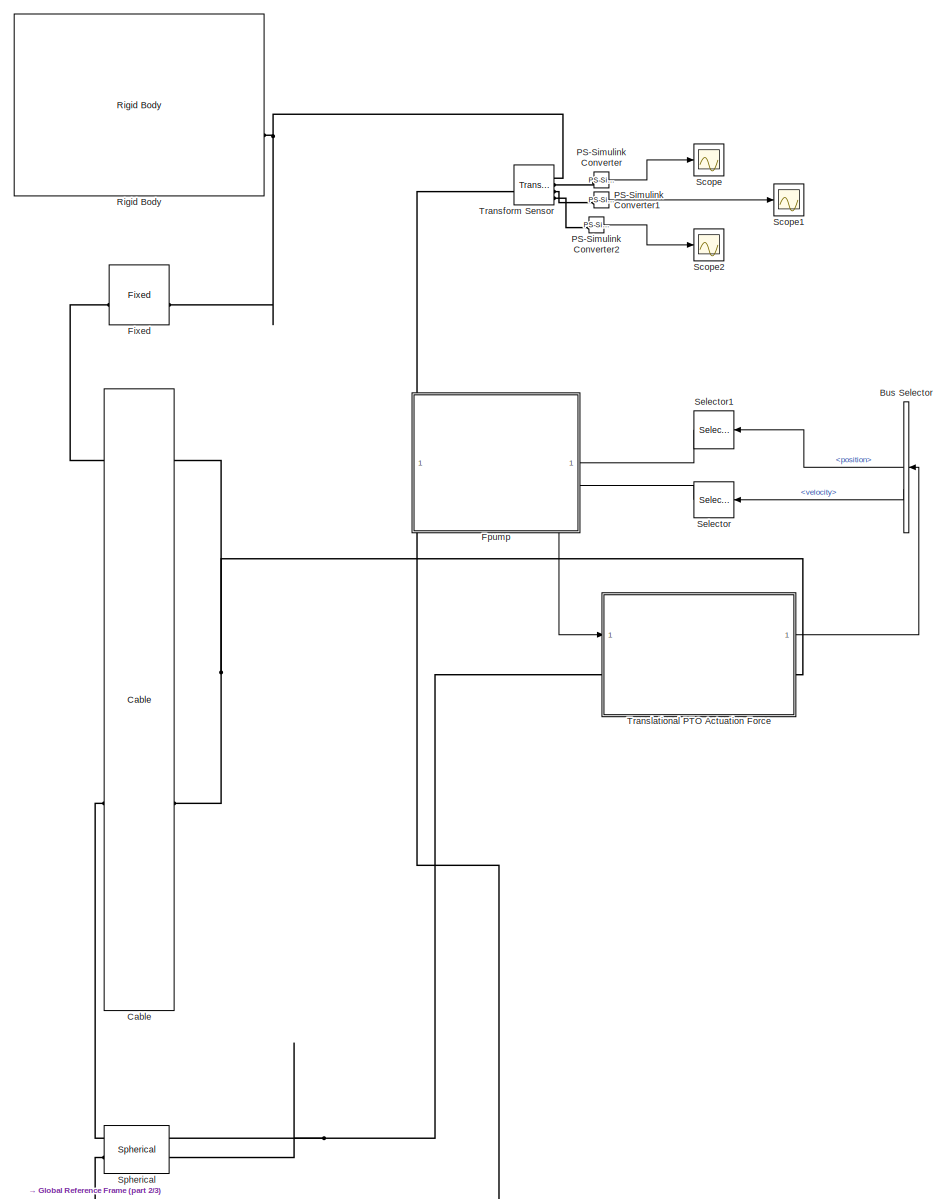
[diagram: root canvas - part 1/3, top center region]
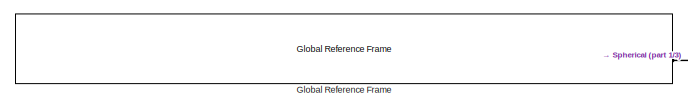
[diagram: root canvas - part 2/3, middle left region]
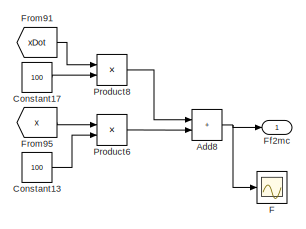
[diagram: root canvas - part 3/3, bottom right region]
MODEL slx_5f4019ffcd06
KIND model
CONFIG FixedStep = 0.01
CONFIG MaxStep = 0.01
CONFIG SolverName = ode23t
CONFIG StartTime = 0
CONFIG StopTime = 200
BLOCK [Sum] Add8
  IconShape = rectangular
BLOCK [BusSelector] Bus Selector
  NameLocation = top
  OutputSignals = position,velocity
BLOCK [Reference] Cable  REF=WECSim_Lib_Cables/Cable
  AttributesFormatString = %<cable>
  SourceBlock = WECSim_Lib_Cables/Cable
  SourceType = Cables
BLOCK [Constant] Constant13
  Value = 100
BLOCK [Constant] Constant17
  Value = 100
BLOCK [Scope] F
  ActiveDisplayYMaximum = 1
  ActiveDisplayYMinimum = -1
  DataLoggingVariableName = ScopeData2
  Floating = off
  GraphicalSettings = {"Style":{"BackgroundColor":[0.12941176470588237,0.12941176470588237,0.12941176470588237],"AxesColor":[0.07058823529411765,0.07058823529411765,0.07058823529411765],"LabelsColor":[0.8509803921568627,0.8509803921568627,0.8509803921568627],"PreserveColors":false,"Visible":[true],"LineStyle":["-"],"LineWidth":[1.5],"BarWidth":[0.9],"LineColor":["auto"],"LineFaceAlpha":[1],"LineEdgeAlpha":[1],"Marker":...<+1898ch>
  MultipleDisplayCache = [{"MaxYLimMag":1,"MaxYLimReal":1,"MinYLimMag":0,"MinYLimReal":-1,"PlotAsMagnitudePhase":false,"ShowGrid":true,"ShowLegend":false,"Title":"%<SignalLabel>","YLabel":""}]
  NumInputPorts = 1
  ScopeFrameLocation = window
  WasSavedAsWebScope = on
  WindowPosition = [917.000000,101.000000,630.000000,562.000000,]
BLOCK [Outport] Ff2mc
  NameLocation = left
BLOCK [Reference] Fixed  REF=WECSim_Lib_Constraints/Fixed
  AttributesFormatString = %<constraint>
  SourceBlock = WECSim_Lib_Constraints/Fixed
  SourceType = Constraints
BLOCK [ModelReference] Fpump
  ModelNameDialog = Fpump.slx
  ModelReferenceVersion = 6.3
  PortSchema = {"entries":[{"content":{"sides":[{"content":{"connectorIds":["Out1"]},"type":"ConnectorPlacement.EquallySpacedRectSide","uuid":"839af239-63ae-4f6d-bc9a-9d6fc4af4e56"},{"content":{"connectorIds":["In1","In2"],"side":"RIGHT"},"type":"ConnectorPlacement.EquallySpacedRectSide","uuid":"a929808c-3efc-435e-9975-25a60b6b0593"},{"content":{"side":"TOP"},"type":"ConnectorPlacement.EquallySpacedRectSide","uu...<+228ch>
BLOCK [From] From91
  GotoTag = xDot
BLOCK [From] From95
  GotoTag = x
BLOCK [Reference] Global Reference Frame  REF=WECSim_Lib_Frames/Global Reference Frame
  SourceBlock = WECSim_Lib_Frames/Global Reference Frame
  SourceType = Frames
BLOCK [Reference] PS-Simulink Converter  REF=nesl_utility/PS-Simulink
Converter
  SourceBlock = nesl_utility/PS-Simulink\nConverter
  SourceType = PS-Simulink\nConverter
BLOCK [Reference] PS-Simulink Converter1  REF=nesl_utility/PS-Simulink
Converter
  SourceBlock = nesl_utility/PS-Simulink\nConverter
  SourceType = PS-Simulink\nConverter
BLOCK [Reference] PS-Simulink Converter2  REF=nesl_utility/PS-Simulink
Converter
  SourceBlock = nesl_utility/PS-Simulink\nConverter
  SourceType = PS-Simulink\nConverter
BLOCK [Product] Product6
BLOCK [Product] Product8
BLOCK [Reference] Rigid Body  REF=WECSim_Lib_Body_Elements/Rigid Body
  AttributesFormatString = %<body>
  SourceBlock = WECSim_Lib_Body_Elements/Rigid Body
  SourceType = Rigid Body
BLOCK [Scope] Scope
  Floating = off
  GraphicalSettings = {"GraphicalSettings":{"LegacySettings":true,"Style":{"Style":{"PlotType":"Auto"}}}}
  NumInputPorts = 1
  ScopeFrameLocation = window
  WasSavedAsWebScope = on
  WindowPosition = [775.000000,301.000000,560.000000,420.000000,]
BLOCK [Scope] Scope1
  DataLoggingVariableName = ScopeData1
  Floating = off
  GraphicalSettings = {"GraphicalSettings":{"LegacySettings":true,"Style":{"Style":{"PlotType":"Auto"}}}}
  NumInputPorts = 1
  WasSavedAsWebScope = on
BLOCK [Scope] Scope2
  DataLoggingVariableName = ScopeData3
  Floating = off
  GraphicalSettings = {"GraphicalSettings":{"LegacySettings":true,"Style":{"Style":{"PlotType":"Auto"}}}}
  NumInputPorts = 1
  WasSavedAsWebScope = on
BLOCK [Selector] Selector
  IndexOptions = Index vector (dialog)
  Indices = 3
  InputPortWidth = 6
  NameLocation = top
  OutputSizes = 1
BLOCK [Selector] Selector1
  IndexOptions = Index vector (dialog)
  Indices = 3
  InputPortWidth = 6
  NameLocation = top
  OutputSizes = 1
BLOCK [Reference] Spherical  REF=WECSim_Lib_Constraints/Spherical
  AttributesFormatString = %<constraint>
  SourceBlock = WECSim_Lib_Constraints/Spherical
  SourceType = Constraints
BLOCK [Reference] Transform Sensor  REF=sm_lib/Frames and
Transforms/Transform
Sensor
  SourceBlock = sm_lib/Frames and\nTransforms/Transform\nSensor
  SourceType = Transform\nSensor
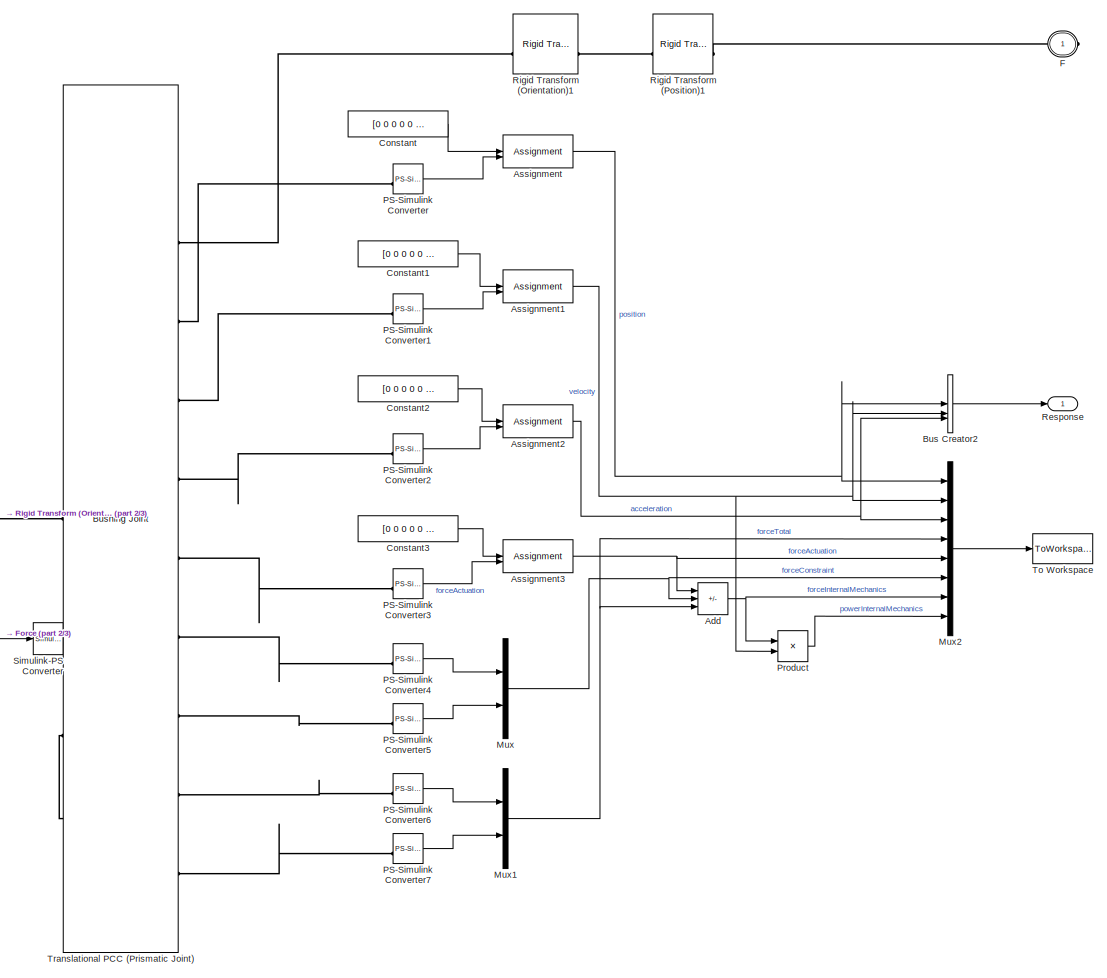
[diagram: Translational PTO Actuation Force - part 1/3, center side, full height]
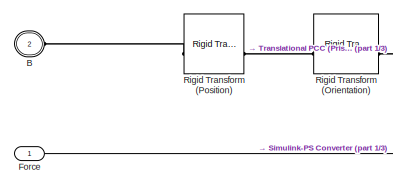
[diagram: Translational PTO Actuation Force - part 2/3, middle left region]
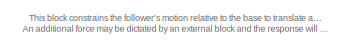
[diagram: Translational PTO Actuation Force - part 3/3, bottom left region]
BLOCK [SubSystem] Translational PTO Actuation Force
  AncestorBlock = WECSim_Lib_PTOs/Translational PTO\nActuation Force
  AttributesFormatString = %<pto>
BLOCK [Sum] Translational PTO Actuation Force/Add
  IconShape = rectangular
  Inputs = --+
BLOCK [Assignment] Translational PTO Actuation Force/Assignment
  IndexOptions = Index vector (dialog)
  Indices = 3
  OutputSizes = 1
BLOCK [Assignment] Translational PTO Actuation Force/Assignment1
  IndexOptions = Index vector (dialog)
  Indices = 3
  OutputSizes = 1
BLOCK [Assignment] Translational PTO Actuation Force/Assignment2
  IndexOptions = Index vector (dialog)
  Indices = 3
  OutputSizes = 1
BLOCK [Assignment] Translational PTO Actuation Force/Assignment3
  IndexOptions = Index vector (dialog)
  Indices = 3
  OutputSizes = 1
BLOCK [PMIOPort] Translational PTO Actuation Force/B
  Port = 2
  Side = Left
BLOCK [BusCreator] Translational PTO Actuation Force/Bus Creator2
  DisplayOption = bar
  InheritFromInputs = on
  Inputs = 3
BLOCK [Constant] Translational PTO Actuation Force/Constant
  Value = [0 0 0 0 0 0]
BLOCK [Constant] Translational PTO Actuation Force/Constant1
  Value = [0 0 0 0 0 0]
BLOCK [Constant] Translational PTO Actuation Force/Constant2
  Value = [0 0 0 0 0 0]
BLOCK [Constant] Translational PTO Actuation Force/Constant3
  Value = [0 0 0 0 0 0]
BLOCK [PMIOPort] Translational PTO Actuation Force/F
  Side = Right
BLOCK [Inport] Translational PTO Actuation Force/Force
BLOCK [Mux] Translational PTO Actuation Force/Mux
  DisplayOption = bar
  Inputs = 2
BLOCK [Mux] Translational PTO Actuation Force/Mux1
  DisplayOption = bar
  Inputs = 2
BLOCK [Mux] Translational PTO Actuation Force/Mux2
  DisplayOption = bar
  Inputs = 8
BLOCK [Reference] Translational PTO Actuation Force/PS-Simulink Converter  REF=nesl_utility/PS-Simulink
Converter
  SourceBlock = nesl_utility/PS-Simulink\nConverter
  SourceType = PS-Simulink\nConverter
BLOCK [Reference] Translational PTO Actuation Force/PS-Simulink Converter1  REF=nesl_utility/PS-Simulink
Converter
  SourceBlock = nesl_utility/PS-Simulink\nConverter
  SourceType = PS-Simulink\nConverter
BLOCK [Reference] Translational PTO Actuation Force/PS-Simulink Converter2  REF=nesl_utility/PS-Simulink
Converter
  SourceBlock = nesl_utility/PS-Simulink\nConverter
  SourceType = PS-Simulink\nConverter
BLOCK [Reference] Translational PTO Actuation Force/PS-Simulink Converter3  REF=nesl_utility/PS-Simulink
Converter
  SourceBlock = nesl_utility/PS-Simulink\nConverter
  SourceType = PS-Simulink\nConverter
BLOCK [Reference] Translational PTO Actuation Force/PS-Simulink Converter4  REF=nesl_utility/PS-Simulink
Converter
  SourceBlock = nesl_utility/PS-Simulink\nConverter
  SourceType = PS-Simulink\nConverter
BLOCK [Reference] Translational PTO Actuation Force/PS-Simulink Converter5  REF=nesl_utility/PS-Simulink
Converter
  SourceBlock = nesl_utility/PS-Simulink\nConverter
  SourceType = PS-Simulink\nConverter
BLOCK [Reference] Translational PTO Actuation Force/PS-Simulink Converter6  REF=nesl_utility/PS-Simulink
Converter
  SourceBlock = nesl_utility/PS-Simulink\nConverter
  SourceType = PS-Simulink\nConverter
BLOCK [Reference] Translational PTO Actuation Force/PS-Simulink Converter7  REF=nesl_utility/PS-Simulink
Converter
  SourceBlock = nesl_utility/PS-Simulink\nConverter
  SourceType = PS-Simulink\nConverter
BLOCK [Product] Translational PTO Actuation Force/Product
BLOCK [Outport] Translational PTO Actuation Force/Response
BLOCK [Reference] Translational PTO Actuation Force/Rigid Transform (Orientation)  REF=sm_lib/Frames and
Transforms/Rigid
Transform
  SourceBlock = sm_lib/Frames and\nTransforms/Rigid\nTransform
  SourceType = Rigid\nTransform
BLOCK [Reference] Translational PTO Actuation Force/Rigid Transform (Orientation)1  REF=sm_lib/Frames and
Transforms/Rigid
Transform
  SourceBlock = sm_lib/Frames and\nTransforms/Rigid\nTransform
  SourceType = Rigid\nTransform
BLOCK [Reference] Translational PTO Actuation Force/Rigid Transform (Position)  REF=sm_lib/Frames and
Transforms/Rigid
Transform
  SourceBlock = sm_lib/Frames and\nTransforms/Rigid\nTransform
  SourceType = Rigid\nTransform
BLOCK [Reference] Translational PTO Actuation Force/Rigid Transform (Position)1  REF=sm_lib/Frames and
Transforms/Rigid
Transform
  SourceBlock = sm_lib/Frames and\nTransforms/Rigid\nTransform
  SourceType = Rigid\nTransform
BLOCK [Reference] Translational PTO Actuation Force/Simulink-PS Converter  REF=nesl_utility/Simulink-PS
Converter
  SourceBlock = nesl_utility/Simulink-PS\nConverter
  SourceType = Simulink-PS\nConverter
BLOCK [ToWorkspace] Translational PTO Actuation Force/To Workspace
  FixptAsFi = on
  MaxDataPoints = inf
  SampleTime = simu.dtOut
  SaveFormat = Structure With Time
  VariableName = pto1_out
BLOCK [Reference] Translational PTO Actuation Force/Translational PCC (Prismatic Joint)   REF=sm_lib/Joints/Bushing Joint
  SourceBlock = sm_lib/Joints/Bushing Joint
  SourceType = Bushing Joint
ANNOTATION Translational PTO Actuation Force: This block constrains the follower's motion relative to the base to translate along the PTO's z-axis. The forces required for the constraint and the updated response are output of the joint, converted to Simulink, assigned to the correct dimension for wecSim, and output. An additional force may be dictated by an external block and the response will take this quantity into account.
NET Add8:1 -> F:1, Ff2mc:1
LINE Bus Selector:1 -> Selector1:1
LINE Bus Selector:2 -> Selector:1
LINE Constant13:1 -> Product6:2
LINE Constant17:1 -> Product8:2
LINE Fpump:1 -> Translational PTO Actuation Force:1
LINE From91:1 -> Product8:1
LINE From95:1 -> Product6:1
LINE PS-Simulink Converter1:1 -> Scope1:1
LINE PS-Simulink Converter2:1 -> Scope2:1
LINE PS-Simulink Converter:1 -> Scope:1
LINE Product6:1 -> Add8:2
LINE Product8:1 -> Add8:1
LINE Selector1:1 -> Fpump:1
LINE Selector:1 -> Fpump:2
LINE Translational PTO Actuation Force:1 -> Bus Selector:1
PNET net1: Cable:LConn1 -- Spherical:RConn1 -- Translational PTO Actuation Force:LConn1
PNET net2: Cable:RConn1 -- Fixed:LConn1 -- Translational PTO Actuation Force:RConn1
PNET net3: Fixed:RConn1 -- Rigid Body:RConn1 -- Transform Sensor:RConn1
PNET net4: Global Reference Frame:RConn1 -- Spherical:LConn1 -- Transform Sensor:LConn1
PLINE PS-Simulink Converter1:LConn1 -- Transform Sensor:RConn3
PLINE PS-Simulink Converter2:LConn1 -- Transform Sensor:RConn4
PLINE PS-Simulink Converter:LConn1 -- Transform Sensor:RConn2
note: NET lines group one-source signal fan-out (src -> all destinations, sorted); 1:1 wires keep LINE; PNET lines group multi-terminal physical nets as a canonical sorted terminal list (undirected conserving connections); 2-terminal nets keep the pairwise PLINE form
